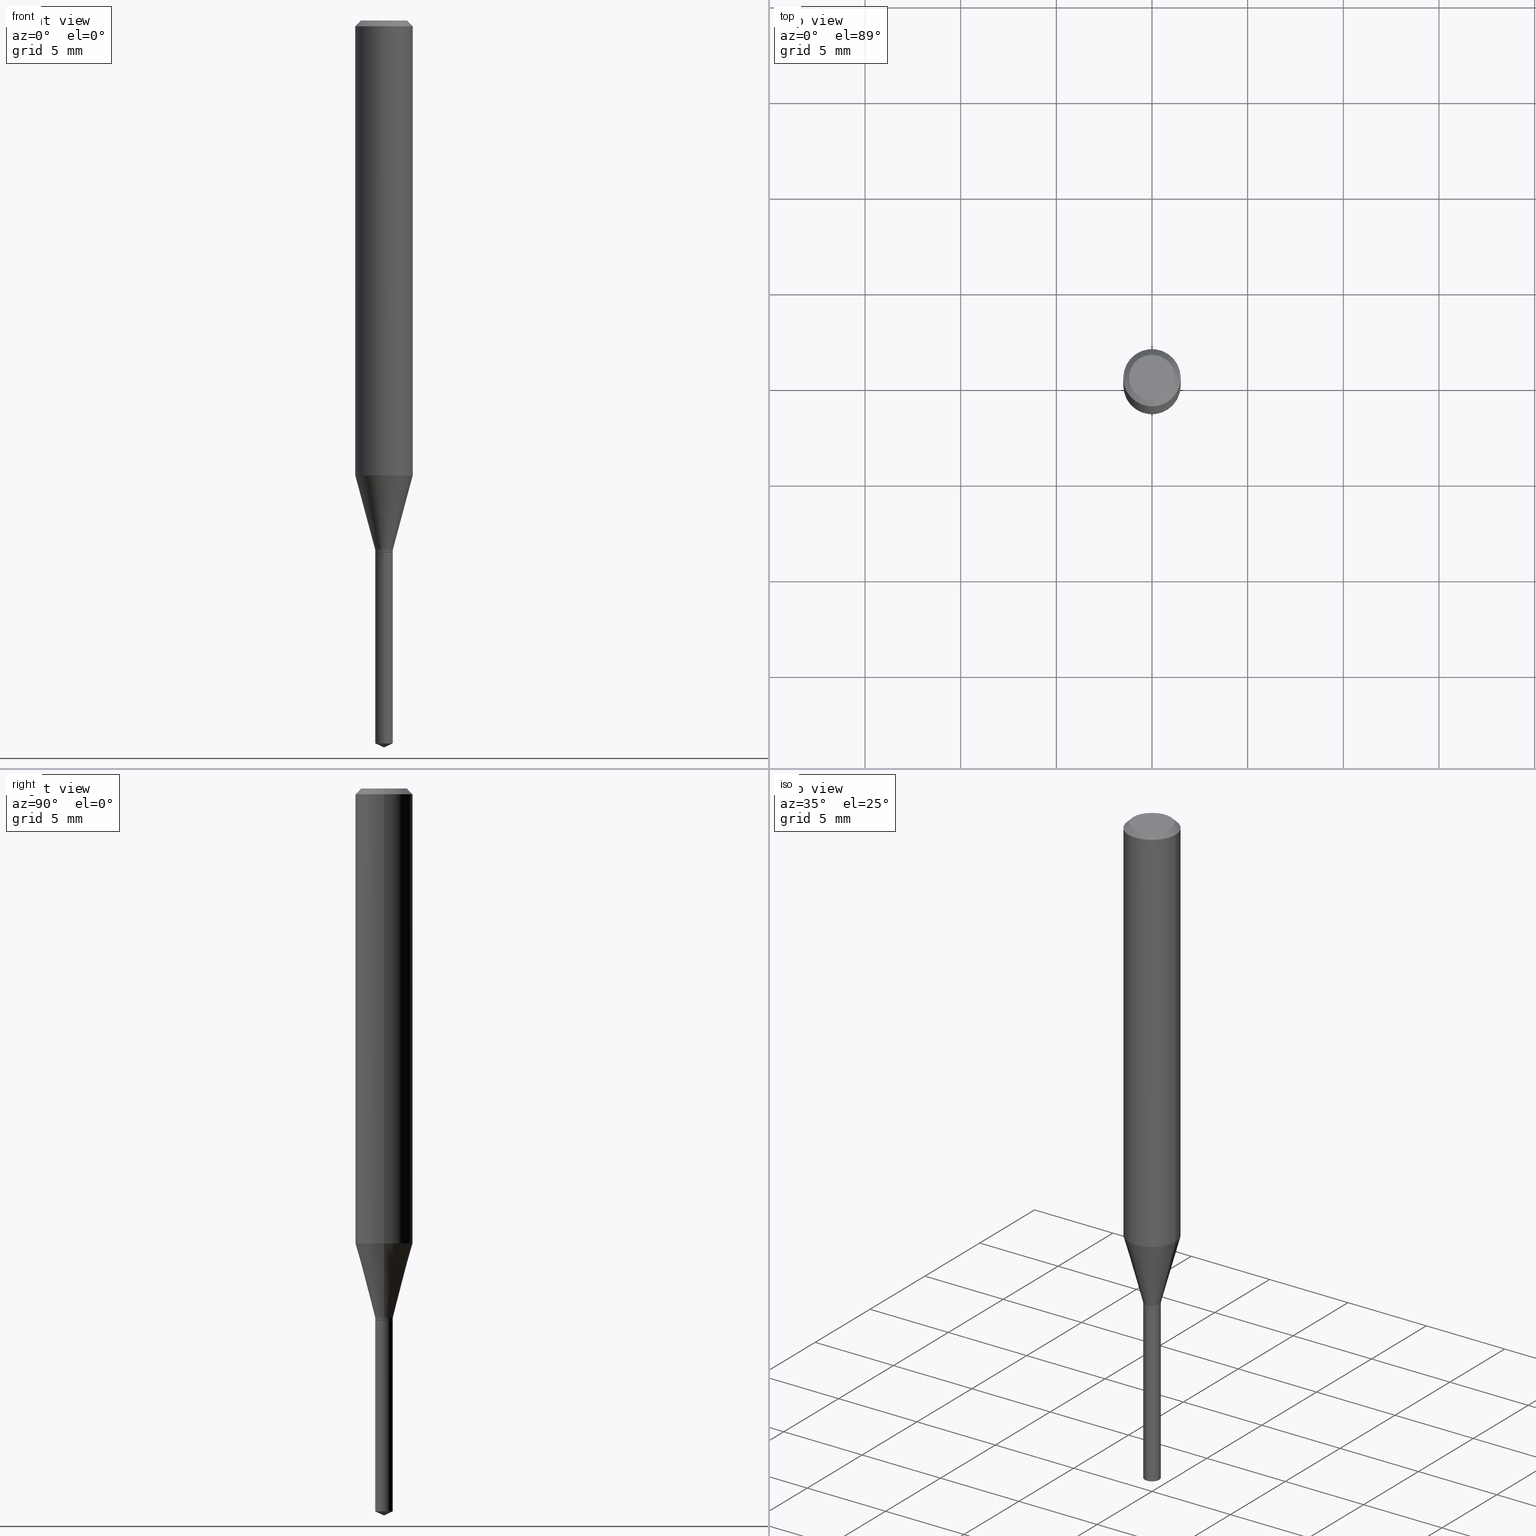
[diagram: canonical four-view strip — front | top / right | iso, engineering-drawing reading convention]
A machine part, canonical four-view strip (front | top / right | iso — engineering-drawing reading convention). The complete STEP part file that produces these views, byte-faithful:
ISO-10303-21;
HEADER;
FILE_DESCRIPTION (( 'STEP AP203' ),
    '1' );
FILE_NAME ('08320.STEP',
    '2024-04-24T14:18:38',
    ( '' ),
    ( '' ),
    'SwSTEP 2.0',
    'SolidWorks 2023',
    '' );
FILE_SCHEMA (( 'CONFIG_CONTROL_DESIGN' ));
ENDSEC;

DATA;
#1 =( CONVERSION_BASED_UNIT ( 'INCH', #327 ) LENGTH_UNIT ( ) NAMED_UNIT ( #437 ) );
#2 = PERSON_AND_ORGANIZATION_ROLE ( 'design_supplier' ) ;
#3 = CIRCLE ( 'NONE', #331, 0.01810000000000000150 ) ;
#4 = LOCAL_TIME ( 10, 18, 38.00000000000000000, #186 ) ;
#5 = DIRECTION ( 'NONE',  ( 1.000000000000000000, -6.982962677686266711E-15, 0.000000000000000000 ) ) ;
#6 = MECHANICAL_CONTEXT ( 'NONE', #310, 'mechanical' ) ;
#7 = ORIENTED_EDGE ( 'NONE', *, *, #389, .F. ) ;
#8 = DIRECTION ( 'NONE',  ( -6.982962677686267499E-15, -1.000000000000000000, 3.520397390770428626E-15 ) ) ;
#9 = CONICAL_SURFACE ( 'NONE', #321, 0.01810000000000000150, 0.2617993877991498519 ) ;
#10 = ORIENTED_EDGE ( 'NONE', *, *, #30, .T. ) ;
#11 = PERSON_AND_ORGANIZATION ( #353, #68 ) ;
#12 = VERTEX_POINT ( 'NONE', #414 ) ;
#13 = VERTEX_POINT ( 'NONE', #89 ) ;
#14 = DIRECTION ( 'NONE',  ( 1.000000000000000000, -6.982962677686266711E-15, 4.876176775795935793E-29 ) ) ;
#15 = VERTEX_POINT ( 'NONE', #80 ) ;
#16 = DIRECTION ( 'NONE',  ( -2.445468806185136597E-29, 3.491481338843145583E-15, 1.000000000000000000 ) ) ;
#17 = CIRCLE ( 'NONE', #126, 0.05904999999999999832 ) ;
#18 = VECTOR ( 'NONE', #138, 39.37007874015748854 ) ;
#19 = ORIENTED_EDGE ( 'NONE', *, *, #432, .T. ) ;
#20 = CARTESIAN_POINT ( 'NONE',  ( 2.676565608369631794E-29, -3.821426325363822773E-15, -1.094499999999999806 ) ) ;
#21 = ORIENTED_EDGE ( 'NONE', *, *, #409, .F. ) ;
#22 = CARTESIAN_POINT ( 'NONE',  ( 0.01760000000000000106, -3.944326468491100569E-15, -1.094499999999999806 ) ) ;
#23 = CARTESIAN_POINT ( 'NONE',  ( -0.01810000000000000150, -3.673964090961491577E-15, -1.089099999999999957 ) ) ;
#24 = APPROVAL ( #47, 'UNSPECIFIED' ) ;
#25 = AXIS2_PLACEMENT_3D ( 'NONE', #408, #451, #259 ) ;
#26 = DIRECTION ( 'NONE',  ( -2.445468806185136597E-29, 3.491481338843145583E-15, 1.000000000000000000 ) ) ;
#27 = CARTESIAN_POINT ( 'NONE',  ( 0.01810000000000000150, -3.928963950600190549E-15, -1.089099999999999957 ) ) ;
#28 = DIRECTION ( 'NONE',  ( -2.445460715294871217E-29, 3.491492925458510144E-15, 1.000000000000000000 ) ) ;
#29 = ORIENTED_EDGE ( 'NONE', *, *, #231, .T. ) ;
#30 = EDGE_CURVE ( 'NONE', #378, #148, #229, .T. ) ;
#31 = PERSON_AND_ORGANIZATION ( #353, #68 ) ;
#32 = AXIS2_PLACEMENT_3D ( 'NONE', #224, #82, #227 ) ;
#33 = CONICAL_SURFACE ( 'NONE', #300, 0.01810000000000000150, 0.2617993877991498519 ) ;
#34 = PERSON_AND_ORGANIZATION_ROLE ( 'creator' ) ;
#35 = CC_DESIGN_PERSON_AND_ORGANIZATION_ASSIGNMENT ( #407, #2, ( #465 ) ) ;
#36 = CARTESIAN_POINT ( 'NONE',  ( 2.888098660104663328E-31, -4.123439461173779030E-17, -0.01181000000000006871 ) ) ;
#37 = DIRECTION ( 'NONE',  ( 0.000000000000000000, 0.000000000000000000, 1.000000000000000000 ) ) ;
#38 = APPROVAL ( #443, 'UNSPECIFIED' ) ;
#39 = EDGE_LOOP ( 'NONE', ( #423, #490, #208, #128 ) ) ;
#40 = DIRECTION ( 'NONE',  ( -0.7071067811865218156, 7.493145998870261075E-15, 0.7071067811865732189 ) ) ;
#41 = AXIS2_PLACEMENT_3D ( 'NONE', #444, #119, #187 ) ;
#42 = COORDINATED_UNIVERSAL_TIME_OFFSET ( 5, 0, .BEHIND. ) ;
#43 = VECTOR ( 'NONE', #484, 39.37007874015748143 ) ;
#44 = VERTEX_POINT ( 'NONE', #366 ) ;
#45 = DIRECTION ( 'NONE',  ( -2.445468806185136877E-29, 3.491481338843145188E-15, 1.000000000000000000 ) ) ;
#46 = DIRECTION ( 'NONE',  ( -6.982962677686265922E-15, -1.000000000000000000, 0.000000000000000000 ) ) ;
#47 = APPROVAL_STATUS ( 'not_yet_approved' ) ;
#48 = EDGE_CURVE ( 'NONE', #164, #163, #17, .T. ) ;
#49 = ORIENTED_EDGE ( 'NONE', *, *, #51, .T. ) ;
#50 = FACE_OUTER_BOUND ( 'NONE', #64, .T. ) ;
#51 = EDGE_CURVE ( 'NONE', #285, #304, #106, .T. ) ;
#52 = ORIENTED_EDGE ( 'NONE', *, *, #284, .T. ) ;
#53 = DIRECTION ( 'NONE',  ( -2.445468806185136597E-29, 3.491481338843145583E-15, 1.000000000000000000 ) ) ;
#54 = DIRECTION ( 'NONE',  ( 1.000000000000000000, -6.982962677686262766E-15, 0.000000000000000000 ) ) ;
#55 = DIRECTION ( 'NONE',  ( -2.445468806185136597E-29, 3.491481338843145583E-15, 1.000000000000000000 ) ) ;
#56 = CONICAL_SURFACE ( 'NONE', #427, 0.01760000000000000106, 0.7853981633974119747 ) ;
#57 = DIRECTION ( 'NONE',  ( -6.982962677686265922E-15, -1.000000000000000000, 0.000000000000000000 ) ) ;
#58 = EDGE_CURVE ( 'NONE', #442, #240, #86, .T. ) ;
#59 = CARTESIAN_POINT ( 'NONE',  ( 0.000000000000000000, 0.000000000000000000, 0.000000000000000000 ) ) ;
#60 = CARTESIAN_POINT ( 'NONE',  ( -9.261931828548885815E-28, 1.322367415117763772E-13, 37.87397874015748300 ) ) ;
#61 = ORIENTED_EDGE ( 'NONE', *, *, #51, .F. ) ;
#62 = LINE ( 'NONE', #404, #258 ) ;
#63 = EDGE_CURVE ( 'NONE', #163, #164, #156, .T. ) ;
#64 = EDGE_LOOP ( 'NONE', ( #19, #201, #343, #167 ) ) ;
#65 = CARTESIAN_POINT ( 'NONE',  ( 2.676565608369631794E-29, -3.821426325363822773E-15, -1.094499999999999806 ) ) ;
#66 = VERTEX_POINT ( 'NONE', #322 ) ;
#67 = AXIS2_PLACEMENT_3D ( 'NONE', #388, #105, #385 ) ;
#68 = ORGANIZATION ( 'UNSPECIFIED', 'UNSPECIFIED', '' ) ;
#69 = DIRECTION ( 'NONE',  ( -6.982962677686265922E-15, -1.000000000000000000, 0.000000000000000000 ) ) ;
#70 = DIRECTION ( 'NONE',  ( -2.445460715294871217E-29, 3.491492925458510144E-15, 1.000000000000000000 ) ) ;
#71 = EDGE_LOOP ( 'NONE', ( #309, #347, #351 ) ) ;
#72 = ADVANCED_FACE ( 'NONE', ( #76 ), #77, .T. ) ;
#73 = CALENDAR_DATE ( 2024, 24, 4 ) ;
#74 = CC_DESIGN_PERSON_AND_ORGANIZATION_ASSIGNMENT ( #439, #183, ( #346 ) ) ;
#75 = EDGE_LOOP ( 'NONE', ( #270, #287 ) ) ;
#76 = FACE_OUTER_BOUND ( 'NONE', #71, .T. ) ;
#77 = CONICAL_SURFACE ( 'NONE', #41, 84.42940631927494621, 1.134464013796318671 ) ;
#78 = CIRCLE ( 'NONE', #127, 0.05905000000000011628 ) ;
#79 = ADVANCED_FACE ( 'NONE', ( #440 ), #326, .F. ) ;
#80 = CARTESIAN_POINT ( 'NONE',  ( 0.01810000000000000150, -3.928963950600190549E-15, -1.089099999999999957 ) ) ;
#81 = ORIENTED_EDGE ( 'NONE', *, *, #312, .F. ) ;
#82 = DIRECTION ( 'NONE',  ( -2.445468806185136597E-29, 3.491481338843145583E-15, 1.000000000000000000 ) ) ;
#83 = APPROVAL ( #161, 'UNSPECIFIED' ) ;
#84 = LINE ( 'NONE', #151, #108 ) ;
#85 = APPROVAL_DATE_TIME ( #417, #38 ) ;
#86 = CIRCLE ( 'NONE', #476, 0.01760000000000000106 ) ;
#87 = CIRCLE ( 'NONE', #435, 0.01810000000000000150 ) ;
#88 = CC_DESIGN_PERSON_AND_ORGANIZATION_ASSIGNMENT ( #246, #377, ( #111 ) ) ;
#89 = CARTESIAN_POINT ( 'NONE',  ( -1.263916244660946470E-16, -0.01810000000000382483, -1.094499999999999806 ) ) ;
#90 = ADVANCED_BREP_SHAPE_REPRESENTATION ( '08320', ( #296, #461, #394 ), #488 ) ;
#91 = DIRECTION ( 'NONE',  ( -2.445460715294871217E-29, 3.491492925458510144E-15, 1.000000000000000000 ) ) ;
#92 = PERSON_AND_ORGANIZATION ( #353, #68 ) ;
#93 = CARTESIAN_POINT ( 'NONE',  ( 0.04724000000000000421, -3.852183633974369345E-16, -3.380025165621689721E-19 ) ) ;
#94 = DIRECTION ( 'NONE',  ( -2.445460715294871217E-29, 3.491492925458510144E-15, 1.000000000000000000 ) ) ;
#95 = CALENDAR_DATE ( 2024, 24, 4 ) ;
#96 = ADVANCED_FACE ( 'NONE', ( #261 ), #367, .T. ) ;
#97 = CIRCLE ( 'NONE', #315, 0.01810000000000000150 ) ;
#98 = AXIS2_PLACEMENT_3D ( 'NONE', #120, #223, #185 ) ;
#99 = ORIENTED_EDGE ( 'NONE', *, *, #248, .T. ) ;
#100 = DIRECTION ( 'NONE',  ( 2.438088387897960049E-29, -3.491481338843145188E-15, -1.000000000000000000 ) ) ;
#101 = DIRECTION ( 'NONE',  ( -6.982962677686265922E-15, -1.000000000000000000, 0.000000000000000000 ) ) ;
#102 = DIRECTION ( 'NONE',  ( -2.445468806185136597E-29, 3.491481338843145583E-15, 1.000000000000000000 ) ) ;
#103 = DATE_AND_TIME ( #198, #436 ) ;
#104 = DIRECTION ( 'NONE',  ( -2.445468806185136597E-29, 3.491481338843145583E-15, 1.000000000000000000 ) ) ;
#105 = DIRECTION ( 'NONE',  ( -2.445460715294871217E-29, 3.491492925458510144E-15, 1.000000000000000000 ) ) ;
#106 = CIRCLE ( 'NONE', #288, 0.01810000000000000150 ) ;
#107 = DIRECTION ( 'NONE',  ( 1.000000000000000000, -6.982962677686260400E-15, 0.000000000000000000 ) ) ;
#108 = VECTOR ( 'NONE', #379, 39.37007874015748143 ) ;
#109 = EDGE_CURVE ( 'NONE', #12, #13, #463, .T. ) ;
#110 = CARTESIAN_POINT ( 'NONE',  ( -0.01810000000000000150, 1.286082351725781443E-16, -8.903272513361380370E-31 ) ) ;
#111 = PRODUCT ( '08320', '08320', '', ( #6 ) ) ;
#112 = AXIS2_PLACEMENT_3D ( 'NONE', #65, #474, #358 ) ;
#113 = CARTESIAN_POINT ( 'NONE',  ( 3.658653776152657051E-29, -5.223622565778476142E-15, -1.496099999999999985 ) ) ;
#114 = DESIGN_CONTEXT ( 'detailed design', #342, 'design' ) ;
#115 = ORIENTED_EDGE ( 'NONE', *, *, #124, .F. ) ;
#116 = COORDINATED_UNIVERSAL_TIME_OFFSET ( 5, 0, .BEHIND. ) ;
#117 = CARTESIAN_POINT ( 'NONE',  ( 3.658653776152655930E-29, -5.223622565778476142E-15, -1.496099999999999985 ) ) ;
#118 = APPROVAL_ROLE ( '' ) ;
#119 = DIRECTION ( 'NONE',  ( -2.445460715294871217E-29, 3.491492925458510144E-15, 1.000000000000000000 ) ) ;
#120 = CARTESIAN_POINT ( 'NONE',  ( 0.000000000000000000, 0.000000000000000000, 0.000000000000000000 ) ) ;
#121 = EDGE_CURVE ( 'NONE', #434, #265, #411, .T. ) ;
#122 = DIRECTION ( 'NONE',  ( 1.000000000000000000, -6.982962677686265922E-15, 4.876176775795935793E-29 ) ) ;
#123 = PERSON_AND_ORGANIZATION ( #353, #68 ) ;
#124 = EDGE_CURVE ( 'NONE', #304, #15, #251, .T. ) ;
#125 = CARTESIAN_POINT ( 'NONE',  ( 2.676565608369631794E-29, -3.821426325363822773E-15, -1.094499999999999806 ) ) ;
#126 = AXIS2_PLACEMENT_3D ( 'NONE', #36, #330, #5 ) ;
#127 = AXIS2_PLACEMENT_3D ( 'NONE', #317, #178, #481 ) ;
#128 = ORIENTED_EDGE ( 'NONE', *, *, #219, .F. ) ;
#129 = COORDINATED_UNIVERSAL_TIME_OFFSET ( 5, 0, .BEHIND. ) ;
#130 = ORIENTED_EDGE ( 'NONE', *, *, #109, .F. ) ;
#131 = APPROVAL_PERSON_ORGANIZATION ( #31, #38, #118 ) ;
#132 = EDGE_LOOP ( 'NONE', ( #276, #457, #181, #438 ) ) ;
#133 = FACE_OUTER_BOUND ( 'NONE', #200, .T. ) ;
#134 = ADVANCED_FACE ( 'NONE', ( #135 ), #390, .F. ) ;
#135 = FACE_OUTER_BOUND ( 'NONE', #361, .T. ) ;
#136 = ORIENTED_EDGE ( 'NONE', *, *, #109, .T. ) ;
#137 = DIRECTION ( 'NONE',  ( -1.000000000000000000, 6.982962677686266711E-15, 0.000000000000000000 ) ) ;
#138 = DIRECTION ( 'NONE',  ( -0.2588190451025211281, 5.211531920934547886E-15, 0.9659258262890679791 ) ) ;
#139 = EDGE_CURVE ( 'NONE', #66, #265, #144, .T. ) ;
#140 = PLANE ( 'NONE',  #355 ) ;
#141 = VECTOR ( 'NONE', #357, 39.37007874015748854 ) ;
#142 = ORIENTED_EDGE ( 'NONE', *, *, #176, .F. ) ;
#143 = CARTESIAN_POINT ( 'NONE',  ( 1.286082351726144812E-16, 0.01809999999999480080, -1.487659831387394549 ) ) ;
#144 = LINE ( 'NONE', #23, #18 ) ;
#145 = ORIENTED_EDGE ( 'NONE', *, *, #157, .T. ) ;
#146 = CONICAL_SURFACE ( 'NONE', #262, 0.05904999999999999832, 0.7853981633974452814 ) ;
#147 = EDGE_CURVE ( 'NONE', #12, #217, #364, .T. ) ;
#148 = VERTEX_POINT ( 'NONE', #243 ) ;
#149 = DIRECTION ( 'NONE',  ( 1.000000000000000000, -6.982962677686260400E-15, 0.000000000000000000 ) ) ;
#150 = CARTESIAN_POINT ( 'NONE',  ( 0.000000000000000000, 0.000000000000000000, 0.000000000000000000 ) ) ;
#151 = CARTESIAN_POINT ( 'NONE',  ( 0.05905000000000006077, -4.123439461173744764E-16, 2.879382386107503023E-30 ) ) ;
#152 = VECTOR ( 'NONE', #40, 39.37007874015748143 ) ;
#153 = CIRCLE ( 'NONE', #253, 0.01810000000000000150 ) ;
#154 = CARTESIAN_POINT ( 'NONE',  ( 2.675342873966538993E-29, -3.819680584694400481E-15, -1.093999999999999861 ) ) ;
#155 = ADVANCED_FACE ( 'NONE', ( #279 ), #9, .T. ) ;
#156 = CIRCLE ( 'NONE', #25, 0.05904999999999999832 ) ;
#157 = EDGE_CURVE ( 'NONE', #434, #163, #84, .T. ) ;
#158 = ORIENTED_EDGE ( 'NONE', *, *, #269, .F. ) ;
#159 = CARTESIAN_POINT ( 'NONE',  ( -0.05905000000000011628, -2.849402544195350882E-15, -0.9362725194300541842 ) ) ;
#160 = DIRECTION ( 'NONE',  ( 1.000000000000000000, -6.982962677686262766E-15, 0.000000000000000000 ) ) ;
#161 = APPROVAL_STATUS ( 'not_yet_approved' ) ;
#162 = ORIENTED_EDGE ( 'NONE', *, *, #248, .F. ) ;
#163 = VERTEX_POINT ( 'NONE', #422 ) ;
#164 = VERTEX_POINT ( 'NONE', #344 ) ;
#165 = AXIS2_PLACEMENT_3D ( 'NONE', #376, #372, #203 ) ;
#166 = CARTESIAN_POINT ( 'NONE',  ( 3.658671642415649744E-29, -5.223597202677443246E-15, -1.496099999999999985 ) ) ;
#167 = ORIENTED_EDGE ( 'NONE', *, *, #206, .F. ) ;
#168 = FACE_OUTER_BOUND ( 'NONE', #244, .T. ) ;
#169 = CYLINDRICAL_SURFACE ( 'NONE', #412, 0.01810000000000000150 ) ;
#170 = DIRECTION ( 'NONE',  ( 1.000000000000000000, -6.982962677686266711E-15, 0.000000000000000000 ) ) ;
#171 = CARTESIAN_POINT ( 'NONE',  ( -0.01760000000000000106, -3.696370803870045503E-15, -1.094499999999999806 ) ) ;
#172 = CYLINDRICAL_SURFACE ( 'NONE', #67, 0.01810000000000000150 ) ;
#173 = FACE_OUTER_BOUND ( 'NONE', #400, .T. ) ;
#174 = AXIS2_PLACEMENT_3D ( 'NONE', #395, #70, #424 ) ;
#175 = EDGE_LOOP ( 'NONE', ( #162, #49, #196, #7 ) ) ;
#176 = EDGE_CURVE ( 'NONE', #466, #217, #249, .T. ) ;
#177 = CARTESIAN_POINT ( 'NONE',  ( 2.676565608369631794E-29, -3.821426325363822773E-15, -1.094499999999999806 ) ) ;
#178 = DIRECTION ( 'NONE',  ( -2.445468806185136597E-29, 3.491481338843145583E-15, 1.000000000000000000 ) ) ;
#179 = DIRECTION ( 'NONE',  ( 0.7071067811865453523, -7.319954787623248157E-15, -0.7071067811865496822 ) ) ;
#180 = CC_DESIGN_DATE_AND_TIME_ASSIGNMENT ( #222, #362, ( #346 ) ) ;
#181 = ORIENTED_EDGE ( 'NONE', *, *, #63, .F. ) ;
#182 = ORIENTED_EDGE ( 'NONE', *, *, #292, .F. ) ;
#183 = PERSON_AND_ORGANIZATION_ROLE ( 'classification_officer' ) ;
#184 = AXIS2_PLACEMENT_3D ( 'NONE', #59, #102, #382 ) ;
#185 = DIRECTION ( 'NONE',  ( 1.000000000000000000, -6.982962677686266711E-15, 4.876176775795935793E-29 ) ) ;
#186 = COORDINATED_UNIVERSAL_TIME_OFFSET ( 5, 0, .BEHIND. ) ;
#187 = DIRECTION ( 'NONE',  ( -6.982962677686267499E-15, -1.000000000000000000, 3.520397390770428626E-15 ) ) ;
#188 = DIRECTION ( 'NONE',  ( -2.438088387897960049E-29, 3.491481338843145188E-15, 1.000000000000000000 ) ) ;
#189 = CIRCLE ( 'NONE', #464, 0.01810000000000000150 ) ;
#190 = ADVANCED_FACE ( 'NONE', ( #133 ), #56, .T. ) ;
#191 = CC_DESIGN_APPROVAL ( #38, ( #346 ) ) ;
#192 = DIRECTION ( 'NONE',  ( 1.000000000000000000, -6.982962677686262766E-15, 0.000000000000000000 ) ) ;
#193 = DIRECTION ( 'NONE',  ( 1.000000000000000000, 0.000000000000000000, 0.000000000000000000 ) ) ;
#194 = EDGE_CURVE ( 'NONE', #240, #442, #477, .T. ) ;
#195 = VECTOR ( 'NONE', #469, 39.37007874015748854 ) ;
#196 = ORIENTED_EDGE ( 'NONE', *, *, #124, .T. ) ;
#197 = FACE_OUTER_BOUND ( 'NONE', #371, .T. ) ;
#198 = CALENDAR_DATE ( 2024, 24, 4 ) ;
#199 = ADVANCED_FACE ( 'NONE', ( #168 ), #393, .T. ) ;
#200 = EDGE_LOOP ( 'NONE', ( #359, #318, #81, #418 ) ) ;
#201 = ORIENTED_EDGE ( 'NONE', *, *, #139, .T. ) ;
#202 = DIRECTION ( 'NONE',  ( 1.000000000000000000, -6.982962677686266711E-15, 4.876185090822587894E-29 ) ) ;
#203 = DIRECTION ( 'NONE',  ( 1.000000000000000000, -6.982962677686266711E-15, 4.876176775795935793E-29 ) ) ;
#204 = APPROVAL_ROLE ( '' ) ;
#205 = ORIENTED_EDGE ( 'NONE', *, *, #284, .F. ) ;
#206 = EDGE_CURVE ( 'NONE', #15, #434, #278, .T. ) ;
#207 = DIRECTION ( 'NONE',  ( -2.445468806185136597E-29, 3.491481338843145583E-15, 1.000000000000000000 ) ) ;
#208 = ORIENTED_EDGE ( 'NONE', *, *, #206, .T. ) ;
#209 = AXIS2_PLACEMENT_3D ( 'NONE', #482, #470, #170 ) ;
#210 = DIRECTION ( 'NONE',  ( 1.000000000000000000, -6.982962677686262766E-15, 0.000000000000000000 ) ) ;
#211 = DIRECTION ( 'NONE',  ( 1.000000000000000000, -6.982962677686262766E-15, 0.000000000000000000 ) ) ;
#212 = CARTESIAN_POINT ( 'NONE',  ( -0.01760000000000000106, -3.693721576695933513E-15, -1.094499999999999806 ) ) ;
#213 = CARTESIAN_POINT ( 'NONE',  ( 2.676565608369631794E-29, -3.821426325363822773E-15, -1.094499999999999806 ) ) ;
#214 = CIRCLE ( 'NONE', #236, 0.01810000000000000150 ) ;
#215 = APPROVAL_PERSON_ORGANIZATION ( #11, #83, #303 ) ;
#216 = DIRECTION ( 'NONE',  ( -2.445468806185136877E-29, 3.491481338843145188E-15, 1.000000000000000000 ) ) ;
#217 = VERTEX_POINT ( 'NONE', #143 ) ;
#218 = SECURITY_CLASSIFICATION_LEVEL ( 'unclassified' ) ;
#219 = EDGE_CURVE ( 'NONE', #265, #434, #78, .T. ) ;
#220 = DIRECTION ( 'NONE',  ( -2.445468806185136597E-29, 3.491481338843145583E-15, 1.000000000000000000 ) ) ;
#221 = EDGE_LOOP ( 'NONE', ( #458, #397, #136, #338 ) ) ;
#222 = DATE_AND_TIME ( #73, #247 ) ;
#223 = DIRECTION ( 'NONE',  ( -2.445468806185136597E-29, 3.491481338843145583E-15, 1.000000000000000000 ) ) ;
#224 = CARTESIAN_POINT ( 'NONE',  ( 8.265746106709734507E-48, -1.180129479067563789E-33, -3.380025165646692144E-19 ) ) ;
#225 = ORIENTED_EDGE ( 'NONE', *, *, #63, .T. ) ;
#226 = APPROVAL_DATE_TIME ( #450, #83 ) ;
#227 = DIRECTION ( 'NONE',  ( 1.000000000000000000, -6.982962677686266711E-15, 4.876185090822587894E-29 ) ) ;
#228 = ADVANCED_FACE ( 'NONE', ( #305 ), #140, .F. ) ;
#229 = CIRCLE ( 'NONE', #32, 0.04724000000000000421 ) ;
#230 = VECTOR ( 'NONE', #360, 39.37007874015748143 ) ;
#231 = EDGE_CURVE ( 'NONE', #148, #378, #335, .T. ) ;
#232 = ADVANCED_FACE ( 'NONE', ( #271 ), #238, .T. ) ;
#233 = FACE_OUTER_BOUND ( 'NONE', #345, .T. ) ;
#234 = PERSON_AND_ORGANIZATION ( #353, #68 ) ;
#235 = FACE_OUTER_BOUND ( 'NONE', #221, .T. ) ;
#236 = AXIS2_PLACEMENT_3D ( 'NONE', #462, #419, #160 ) ;
#237 = ORIENTED_EDGE ( 'NONE', *, *, #194, .T. ) ;
#238 = CYLINDRICAL_SURFACE ( 'NONE', #184, 0.05905000000000006077 ) ;
#239 = CARTESIAN_POINT ( 'NONE',  ( 2.663360076816232005E-29, -3.802572326134069746E-15, -1.089099999999999957 ) ) ;
#240 = VERTEX_POINT ( 'NONE', #212 ) ;
#241 = EDGE_CURVE ( 'NONE', #442, #304, #352, .T. ) ;
#242 = DIRECTION ( 'NONE',  ( 1.000000000000000000, -6.982962677686260400E-15, 0.000000000000000000 ) ) ;
#243 = CARTESIAN_POINT ( 'NONE',  ( -0.04724000000000000421, 3.504923541997677355E-16, -3.380025165670481712E-19 ) ) ;
#244 = EDGE_LOOP ( 'NONE', ( #471, #381, #52, #489 ) ) ;
#245 = CONICAL_SURFACE ( 'NONE', #369, 84.42940631927494621, 1.134464013796318671 ) ;
#246 = PERSON_AND_ORGANIZATION ( #353, #68 ) ;
#247 = LOCAL_TIME ( 10, 18, 38.00000000000000000, #116 ) ;
#248 = EDGE_CURVE ( 'NONE', #285, #66, #429, .T. ) ;
#249 = LINE ( 'NONE', #166, #195 ) ;
#250 = CC_DESIGN_PERSON_AND_ORGANIZATION_ASSIGNMENT ( #234, #420, ( #264 ) ) ;
#251 = LINE ( 'NONE', #274, #485 ) ;
#252 = ORIENTED_EDGE ( 'NONE', *, *, #312, .T. ) ;
#253 = AXIS2_PLACEMENT_3D ( 'NONE', #421, #339, #101 ) ;
#254 = CARTESIAN_POINT ( 'NONE',  ( 2.663360076816232005E-29, -3.802572326134069746E-15, -1.089099999999999957 ) ) ;
#255 = ORIENTED_EDGE ( 'NONE', *, *, #432, .F. ) ;
#256 = CARTESIAN_POINT ( 'NONE',  ( -0.05904999999999999832, 3.711095515056362547E-16, -0.01181000000000006871 ) ) ;
#257 = ORIENTED_EDGE ( 'NONE', *, *, #431, .T. ) ;
#258 = VECTOR ( 'NONE', #179, 39.37007874015748143 ) ;
#259 = DIRECTION ( 'NONE',  ( 1.000000000000000000, -6.982962677686266711E-15, 0.000000000000000000 ) ) ;
#260 = LOCAL_TIME ( 10, 18, 38.00000000000000000, #129 ) ;
#261 = FACE_OUTER_BOUND ( 'NONE', #175, .T. ) ;
#262 = AXIS2_PLACEMENT_3D ( 'NONE', #406, #486, #441 ) ;
#263 = CC_DESIGN_APPROVAL ( #24, ( #264 ) ) ;
#264 = PRODUCT_DEFINITION ( 'UNKNOWN', '', #465, #114 ) ;
#265 = VERTEX_POINT ( 'NONE', #159 ) ;
#266 = ORIENTED_EDGE ( 'NONE', *, *, #280, .T. ) ;
#267 = CALENDAR_DATE ( 2024, 24, 4 ) ;
#268 = ORIENTED_EDGE ( 'NONE', *, *, #409, .T. ) ;
#269 = EDGE_CURVE ( 'NONE', #265, #164, #302, .T. ) ;
#270 = ORIENTED_EDGE ( 'NONE', *, *, #58, .F. ) ;
#271 = FACE_OUTER_BOUND ( 'NONE', #132, .T. ) ;
#272 = DATE_AND_TIME ( #267, #428 ) ;
#273 = CARTESIAN_POINT ( 'NONE',  ( 2.676565608369631794E-29, -3.821426325363822773E-15, -1.094499999999999806 ) ) ;
#274 = CARTESIAN_POINT ( 'NONE',  ( 0.01810000000000000150, -1.263916244661214436E-16, 8.825879964190644724E-31 ) ) ;
#275 = DIRECTION ( 'NONE',  ( 1.000000000000000000, -6.982962677686262766E-15, 0.000000000000000000 ) ) ;
#276 = ORIENTED_EDGE ( 'NONE', *, *, #121, .T. ) ;
#277 = CARTESIAN_POINT ( 'NONE',  ( 4.132873053354867254E-48, -5.900647395337818946E-34, -1.690012582823346072E-19 ) ) ;
#278 = LINE ( 'NONE', #27, #141 ) ;
#279 = FACE_OUTER_BOUND ( 'NONE', #39, .T. ) ;
#280 = EDGE_CURVE ( 'NONE', #378, #163, #62, .T. ) ;
#281 = DIRECTION ( 'NONE',  ( 0.7071067811865218156, -2.468850131081987665E-15, 0.7071067811865732189 ) ) ;
#282 = AXIS2_PLACEMENT_3D ( 'NONE', #311, #473, #137 ) ;
#283 = CC_DESIGN_SECURITY_CLASSIFICATION ( #346, ( #465 ) ) ;
#284 = EDGE_CURVE ( 'NONE', #148, #164, #286, .T. ) ;
#285 = VERTEX_POINT ( 'NONE', #290 ) ;
#286 = LINE ( 'NONE', #256, #43 ) ;
#287 = ORIENTED_EDGE ( 'NONE', *, *, #194, .F. ) ;
#288 = AXIS2_PLACEMENT_3D ( 'NONE', #154, #297, #192 ) ;
#289 = VECTOR ( 'NONE', #387, 39.37007874015748143 ) ;
#290 = CARTESIAN_POINT ( 'NONE',  ( -0.01810000000000000150, -3.682518220241656550E-15, -1.093999999999999861 ) ) ;
#291 = ORIENTED_EDGE ( 'NONE', *, *, #219, .T. ) ;
#292 = EDGE_CURVE ( 'NONE', #240, #285, #447, .T. ) ;
#293 = AXIS2_PLACEMENT_3D ( 'NONE', #332, #340, #14 ) ;
#294 = VECTOR ( 'NONE', #430, 39.37007874015748143 ) ;
#295 = CARTESIAN_POINT ( 'NONE',  ( 2.676565608369631794E-29, -3.821426325363822773E-15, -1.094499999999999806 ) ) ;
#296 = MANIFOLD_SOLID_BREP ( 'Body-Move/Copy2[1]', #368 ) ;
#297 = DIRECTION ( 'NONE',  ( -2.445468806185136597E-29, 3.491481338843145583E-15, 1.000000000000000000 ) ) ;
#298 = DIRECTION ( 'NONE',  ( -2.445468806185136597E-29, 3.491481338843145583E-15, 1.000000000000000000 ) ) ;
#299 = EDGE_CURVE ( 'NONE', #44, #13, #153, .T. ) ;
#300 = AXIS2_PLACEMENT_3D ( 'NONE', #239, #16, #54 ) ;
#301 = APPROVAL_PERSON_ORGANIZATION ( #92, #24, #204 ) ;
#302 = LINE ( 'NONE', #459, #454 ) ;
#303 = APPROVAL_ROLE ( '' ) ;
#304 = VERTEX_POINT ( 'NONE', #306 ) ;
#305 = FACE_OUTER_BOUND ( 'NONE', #483, .T. ) ;
#306 = CARTESIAN_POINT ( 'NONE',  ( 0.01810000000000000150, -3.946072209160522072E-15, -1.093999999999999861 ) ) ;
#307 = AXIS2_PLACEMENT_3D ( 'NONE', #20, #384, #349 ) ;
#308 = CARTESIAN_POINT ( 'NONE',  ( 3.638022530859460971E-29, -5.194141095227371238E-15, -1.487659831387394549 ) ) ;
#309 = ORIENTED_EDGE ( 'NONE', *, *, #431, .F. ) ;
#310 = APPLICATION_CONTEXT ( 'configuration controlled 3d designs of mechanical parts and assemblies' ) ;
#311 = CARTESIAN_POINT ( 'NONE',  ( 2.888098660104663328E-31, -4.123439461173779030E-17, -0.01181000000000006871 ) ) ;
#312 = EDGE_CURVE ( 'NONE', #304, #285, #214, .T. ) ;
#313 = CARTESIAN_POINT ( 'NONE',  ( 0.05905000000000011628, -3.681321975779065690E-15, -0.9362725194300541842 ) ) ;
#314 = AXIS2_PLACEMENT_3D ( 'NONE', #365, #188, #122 ) ;
#315 = AXIS2_PLACEMENT_3D ( 'NONE', #308, #467, #46 ) ;
#316 = EDGE_LOOP ( 'NONE', ( #472, #266, #225, #205 ) ) ;
#317 = CARTESIAN_POINT ( 'NONE',  ( 2.289625240354564916E-29, -3.268978029661690375E-15, -0.9362725194300541842 ) ) ;
#318 = ORIENTED_EDGE ( 'NONE', *, *, #292, .T. ) ;
#319 = EDGE_CURVE ( 'NONE', #217, #44, #383, .T. ) ;
#320 = ORIENTED_EDGE ( 'NONE', *, *, #299, .T. ) ;
#321 = AXIS2_PLACEMENT_3D ( 'NONE', #350, #55, #210 ) ;
#322 = CARTESIAN_POINT ( 'NONE',  ( -0.01810000000000000150, -3.682518220241656550E-15, -1.089099999999999957 ) ) ;
#323 = CYLINDRICAL_SURFACE ( 'NONE', #98, 0.05905000000000006077 ) ;
#324 = ADVANCED_FACE ( 'NONE', ( #197 ), #245, .T. ) ;
#325 = ORIENTED_EDGE ( 'NONE', *, *, #363, .F. ) ;
#326 = PLANE ( 'NONE',  #314 ) ;
#327 = LENGTH_MEASURE_WITH_UNIT ( LENGTH_MEASURE( 0.02539999999999999897 ), #401 );
#328 = ADVANCED_FACE ( 'NONE', ( #233 ), #348, .T. ) ;
#329 =( NAMED_UNIT ( * ) SI_UNIT ( $, .STERADIAN. ) SOLID_ANGLE_UNIT ( ) );
#330 = DIRECTION ( 'NONE',  ( -2.445468806185136597E-29, 3.491481338843145583E-15, 1.000000000000000000 ) ) ;
#331 = AXIS2_PLACEMENT_3D ( 'NONE', #177, #28, #57 ) ;
#332 = CARTESIAN_POINT ( 'NONE',  ( 0.000000000000000000, 0.000000000000000000, 0.000000000000000000 ) ) ;
#333 = CC_DESIGN_PERSON_AND_ORGANIZATION_ASSIGNMENT ( #123, #34, ( #465 ) ) ;
#334 = UNCERTAINTY_MEASURE_WITH_UNIT (LENGTH_MEASURE( 1.000000000000000082E-05 ), #1, 'distance_accuracy_value', 'NONE');
#335 = CIRCLE ( 'NONE', #403, 0.04724000000000000421 ) ;
#336 = ORIENTED_EDGE ( 'NONE', *, *, #241, .T. ) ;
#337 = DATE_TIME_ROLE ( 'creation_date' ) ;
#338 = ORIENTED_EDGE ( 'NONE', *, *, #299, .F. ) ;
#339 = DIRECTION ( 'NONE',  ( -2.445460715294871217E-29, 3.491492925458510144E-15, 1.000000000000000000 ) ) ;
#340 = DIRECTION ( 'NONE',  ( -2.445468806185136597E-29, 3.491481338843145583E-15, 1.000000000000000000 ) ) ;
#341 = CC_DESIGN_DATE_AND_TIME_ASSIGNMENT ( #103, #337, ( #264 ) ) ;
#342 = APPLICATION_CONTEXT ( 'configuration controlled 3d designs of mechanical parts and assemblies' ) ;
#343 = ORIENTED_EDGE ( 'NONE', *, *, #121, .F. ) ;
#344 = CARTESIAN_POINT ( 'NONE',  ( -0.05904999999999999832, -1.235530726670373770E-15, -0.01181000000000006871 ) ) ;
#345 = EDGE_LOOP ( 'NONE', ( #252, #99, #255, #115 ) ) ;
#346 = SECURITY_CLASSIFICATION ( '', '', #218 ) ;
#347 = ORIENTED_EDGE ( 'NONE', *, *, #176, .T. ) ;
#348 = CYLINDRICAL_SURFACE ( 'NONE', #165, 0.01810000000000000150 ) ;
#349 = DIRECTION ( 'NONE',  ( 1.000000000000000000, -6.982962677686260400E-15, 0.000000000000000000 ) ) ;
#350 = CARTESIAN_POINT ( 'NONE',  ( 2.663360076816232005E-29, -3.802572326134069746E-15, -1.089099999999999957 ) ) ;
#351 = ORIENTED_EDGE ( 'NONE', *, *, #147, .F. ) ;
#352 = LINE ( 'NONE', #22, #449 ) ;
#353 = PERSON ( 'UNSPECIFIED', 'UNSPECIFIED', 'UNSPECIFIED', ('UNSPECIFIED'), ('UNSPECIFIED'), ('UNSPECIFIED') ) ;
#354 = ADVANCED_FACE ( 'NONE', ( #50 ), #33, .T. ) ;
#355 = AXIS2_PLACEMENT_3D ( 'NONE', #277, #100, #426 ) ;
#356 = AXIS2_PLACEMENT_3D ( 'NONE', #125, #207, #107 ) ;
#357 = DIRECTION ( 'NONE',  ( 0.2588190451025211281, 1.565188264969622954E-15, 0.9659258262890679791 ) ) ;
#358 = DIRECTION ( 'NONE',  ( 6.982962677686265922E-15, 1.000000000000000000, -3.491492925458510144E-15 ) ) ;
#359 = ORIENTED_EDGE ( 'NONE', *, *, #58, .T. ) ;
#360 = DIRECTION ( 'NONE',  ( -6.328713451373382789E-15, -0.9063077870366502697, 0.4226182617406985531 ) ) ;
#361 = EDGE_LOOP ( 'NONE', ( #268, #320 ) ) ;
#362 = DATE_TIME_ROLE ( 'classification_date' ) ;
#363 = EDGE_CURVE ( 'NONE', #217, #12, #97, .T. ) ;
#364 = CIRCLE ( 'NONE', #174, 0.01810000000000000150 ) ;
#365 = CARTESIAN_POINT ( 'NONE',  ( 2.676565608369631794E-29, -3.821426325363822773E-15, -1.094499999999999806 ) ) ;
#366 = CARTESIAN_POINT ( 'NONE',  ( 1.286082351726145552E-16, 0.01809999999999617817, -1.094499999999999806 ) ) ;
#367 = CYLINDRICAL_SURFACE ( 'NONE', #293, 0.01810000000000000150 ) ;
#368 = CLOSED_SHELL ( 'NONE', ( #396, #72, #324, #380, #134 ) ) ;
#369 = AXIS2_PLACEMENT_3D ( 'NONE', #60, #94, #8 ) ;
#370 = ADVANCED_FACE ( 'NONE', ( #375 ), #487, .T. ) ;
#371 = EDGE_LOOP ( 'NONE', ( #142, #257, #325 ) ) ;
#372 = DIRECTION ( 'NONE',  ( -2.445468806185136597E-29, 3.491481338843145583E-15, 1.000000000000000000 ) ) ;
#373 = VECTOR ( 'NONE', #91, 39.37007874015748143 ) ;
#374 = EDGE_LOOP ( 'NONE', ( #158, #291, #145, #405 ) ) ;
#375 = FACE_OUTER_BOUND ( 'NONE', #399, .T. ) ;
#376 = CARTESIAN_POINT ( 'NONE',  ( 0.000000000000000000, 0.000000000000000000, 0.000000000000000000 ) ) ;
#377 = PERSON_AND_ORGANIZATION_ROLE ( 'design_owner' ) ;
#378 = VERTEX_POINT ( 'NONE', #93 ) ;
#379 = DIRECTION ( 'NONE',  ( -2.445468806185136877E-29, 3.491481338843145188E-15, 1.000000000000000000 ) ) ;
#380 = ADVANCED_FACE ( 'NONE', ( #235 ), #169, .T. ) ;
#381 = ORIENTED_EDGE ( 'NONE', *, *, #231, .F. ) ;
#382 = DIRECTION ( 'NONE',  ( 1.000000000000000000, -6.982962677686266711E-15, 4.876176775795935793E-29 ) ) ;
#383 = LINE ( 'NONE', #415, #373 ) ;
#384 = DIRECTION ( 'NONE',  ( -2.445468806185136597E-29, 3.491481338843145583E-15, 1.000000000000000000 ) ) ;
#385 = DIRECTION ( 'NONE',  ( -6.982962677686265922E-15, -1.000000000000000000, 0.000000000000000000 ) ) ;
#386 = CARTESIAN_POINT ( 'NONE',  ( 8.265746106709734507E-48, -1.180129479067563789E-33, -3.380025165646692144E-19 ) ) ;
#387 = DIRECTION ( 'NONE',  ( -2.445468806185136877E-29, 3.491481338843145188E-15, 1.000000000000000000 ) ) ;
#388 = CARTESIAN_POINT ( 'NONE',  ( 2.676565608369631794E-29, -3.821426325363822773E-15, -1.094499999999999806 ) ) ;
#389 = EDGE_CURVE ( 'NONE', #66, #15, #87, .T. ) ;
#390 = PLANE ( 'NONE',  #112 ) ;
#391 = ORIENTED_EDGE ( 'NONE', *, *, #147, .T. ) ;
#392 = CARTESIAN_POINT ( 'NONE',  ( 2.663360076816232005E-29, -3.802572326134069746E-15, -1.089099999999999957 ) ) ;
#393 = CONICAL_SURFACE ( 'NONE', #282, 0.05904999999999999832, 0.7853981633974452814 ) ;
#394 = AXIS2_PLACEMENT_3D ( 'NONE', #150, #37, #193 ) ;
#395 = CARTESIAN_POINT ( 'NONE',  ( 3.638022530859460971E-29, -5.194141095227371238E-15, -1.487659831387394549 ) ) ;
#396 = ADVANCED_FACE ( 'NONE', ( #173 ), #172, .T. ) ;
#397 = ORIENTED_EDGE ( 'NONE', *, *, #363, .T. ) ;
#398 = PRODUCT_DEFINITION_SHAPE ( 'NONE', 'NONE',  #264 ) ;
#399 = EDGE_LOOP ( 'NONE', ( #182, #237, #336, #61 ) ) ;
#400 = EDGE_LOOP ( 'NONE', ( #391, #425, #21, #130 ) ) ;
#401 =( LENGTH_UNIT ( ) NAMED_UNIT ( * ) SI_UNIT ( $, .METRE. ) );
#402 =( NAMED_UNIT ( * ) PLANE_ANGLE_UNIT ( ) SI_UNIT ( $, .RADIAN. ) );
#403 = AXIS2_PLACEMENT_3D ( 'NONE', #386, #53, #202 ) ;
#404 = CARTESIAN_POINT ( 'NONE',  ( 0.05904999999999999832, -4.463468013801466955E-16, -0.01181000000000006871 ) ) ;
#405 = ORIENTED_EDGE ( 'NONE', *, *, #48, .F. ) ;
#406 = CARTESIAN_POINT ( 'NONE',  ( 2.888098660104663328E-31, -4.123439461173779030E-17, -0.01181000000000006871 ) ) ;
#407 = PERSON_AND_ORGANIZATION ( #353, #68 ) ;
#408 = CARTESIAN_POINT ( 'NONE',  ( 2.888098660104663328E-31, -4.123439461173779030E-17, -0.01181000000000006871 ) ) ;
#409 = EDGE_CURVE ( 'NONE', #13, #44, #3, .T. ) ;
#410 = APPLICATION_PROTOCOL_DEFINITION ( 'international standard', 'config_control_design', 1994, #310 ) ;
#411 = CIRCLE ( 'NONE', #209, 0.05905000000000011628 ) ;
#412 = AXIS2_PLACEMENT_3D ( 'NONE', #213, #478, #69 ) ;
#413 = CC_DESIGN_APPROVAL ( #83, ( #465 ) ) ;
#414 = CARTESIAN_POINT ( 'NONE',  ( -1.263916244660850081E-16, -0.01810000000000519180, -1.487659831387394549 ) ) ;
#415 = CARTESIAN_POINT ( 'NONE',  ( 1.286082351726048916E-16, 0.01809999999999617817, -1.094499999999999806 ) ) ;
#416 = APPLICATION_PROTOCOL_DEFINITION ( 'international standard', 'config_control_design', 1994, #342 ) ;
#417 = DATE_AND_TIME ( #446, #4 ) ;
#418 = ORIENTED_EDGE ( 'NONE', *, *, #241, .F. ) ;
#419 = DIRECTION ( 'NONE',  ( -2.445468806185136597E-29, 3.491481338843145583E-15, 1.000000000000000000 ) ) ;
#420 = PERSON_AND_ORGANIZATION_ROLE ( 'creator' ) ;
#421 = CARTESIAN_POINT ( 'NONE',  ( 2.676565608369631794E-29, -3.821426325363822773E-15, -1.094499999999999806 ) ) ;
#422 = CARTESIAN_POINT ( 'NONE',  ( 0.05904999999999999832, -4.535783407291118600E-16, -0.01181000000000006871 ) ) ;
#423 = ORIENTED_EDGE ( 'NONE', *, *, #139, .F. ) ;
#424 = DIRECTION ( 'NONE',  ( -6.982962677686265922E-15, -1.000000000000000000, 0.000000000000000000 ) ) ;
#425 = ORIENTED_EDGE ( 'NONE', *, *, #319, .T. ) ;
#426 = DIRECTION ( 'NONE',  ( -1.000000000000000000, 6.982962677686265922E-15, -4.876176775795935793E-29 ) ) ;
#427 = AXIS2_PLACEMENT_3D ( 'NONE', #273, #104, #242 ) ;
#428 = LOCAL_TIME ( 10, 18, 38.00000000000000000, #468 ) ;
#429 = LINE ( 'NONE', #110, #289 ) ;
#430 = DIRECTION ( 'NONE',  ( -2.445460715294871217E-29, 3.491492925458510144E-15, 1.000000000000000000 ) ) ;
#431 = EDGE_CURVE ( 'NONE', #466, #12, #480, .T. ) ;
#432 = EDGE_CURVE ( 'NONE', #15, #66, #189, .T. ) ;
#433 = CLOSED_SHELL ( 'NONE', ( #190, #452, #232, #354, #328, #96, #155, #456, #199, #228, #79, #370 ) ) ;
#434 = VERTEX_POINT ( 'NONE', #313 ) ;
#435 = AXIS2_PLACEMENT_3D ( 'NONE', #392, #26, #275 ) ;
#436 = LOCAL_TIME ( 10, 18, 38.00000000000000000, #42 ) ;
#437 = DIMENSIONAL_EXPONENTS ( 1.000000000000000000, 0.000000000000000000, 0.000000000000000000, 0.000000000000000000, 0.000000000000000000, 0.000000000000000000, 0.000000000000000000 ) ;
#438 = ORIENTED_EDGE ( 'NONE', *, *, #157, .F. ) ;
#439 = PERSON_AND_ORGANIZATION ( #353, #68 ) ;
#440 = FACE_OUTER_BOUND ( 'NONE', #75, .T. ) ;
#441 = DIRECTION ( 'NONE',  ( -1.000000000000000000, 6.982962677686266711E-15, 0.000000000000000000 ) ) ;
#442 = VERTEX_POINT ( 'NONE', #475 ) ;
#443 = APPROVAL_STATUS ( 'not_yet_approved' ) ;
#444 = CARTESIAN_POINT ( 'NONE',  ( -9.261931828548885815E-28, 1.322367415117763772E-13, 37.87397874015748300 ) ) ;
#445 = FACE_OUTER_BOUND ( 'NONE', #316, .T. ) ;
#446 = CALENDAR_DATE ( 2024, 24, 4 ) ;
#447 = LINE ( 'NONE', #171, #152 ) ;
#448 = FACE_OUTER_BOUND ( 'NONE', #374, .T. ) ;
#449 = VECTOR ( 'NONE', #281, 39.37007874015748143 ) ;
#450 = DATE_AND_TIME ( #95, #260 ) ;
#451 = DIRECTION ( 'NONE',  ( -2.445468806185136597E-29, 3.491481338843145583E-15, 1.000000000000000000 ) ) ;
#452 = ADVANCED_FACE ( 'NONE', ( #445 ), #146, .T. ) ;
#453 = CARTESIAN_POINT ( 'NONE',  ( -1.263916244660946470E-16, -0.01810000000000382483, -1.094499999999999806 ) ) ;
#454 = VECTOR ( 'NONE', #45, 39.37007874015748143 ) ;
#455 = SHAPE_DEFINITION_REPRESENTATION ( #398, #90 ) ;
#456 = ADVANCED_FACE ( 'NONE', ( #448 ), #323, .T. ) ;
#457 = ORIENTED_EDGE ( 'NONE', *, *, #269, .T. ) ;
#458 = ORIENTED_EDGE ( 'NONE', *, *, #319, .F. ) ;
#459 = CARTESIAN_POINT ( 'NONE',  ( -0.05905000000000006077, 4.195754854663395916E-16, -2.904631170795524694E-30 ) ) ;
#460 = APPROVAL_DATE_TIME ( #272, #24 ) ;
#461 = MANIFOLD_SOLID_BREP ( 'Body-Move/Copy2[2]', #433 ) ;
#462 = CARTESIAN_POINT ( 'NONE',  ( 2.675342873966538993E-29, -3.819680584694400481E-15, -1.093999999999999861 ) ) ;
#463 = LINE ( 'NONE', #453, #294 ) ;
#464 = AXIS2_PLACEMENT_3D ( 'NONE', #254, #220, #211 ) ;
#465 = PRODUCT_DEFINITION_FORMATION_WITH_SPECIFIED_SOURCE ( 'ANY', '', #111, .NOT_KNOWN. ) ;
#466 = VERTEX_POINT ( 'NONE', #117 ) ;
#467 = DIRECTION ( 'NONE',  ( -2.445460715294871217E-29, 3.491492925458510144E-15, 1.000000000000000000 ) ) ;
#468 = COORDINATED_UNIVERSAL_TIME_OFFSET ( 5, 0, .BEHIND. ) ;
#469 = DIRECTION ( 'NONE',  ( 6.439704144417038242E-15, 0.9063077870366533784, 0.4226182617406922803 ) ) ;
#470 = DIRECTION ( 'NONE',  ( -2.445468806185136597E-29, 3.491481338843145583E-15, 1.000000000000000000 ) ) ;
#471 = ORIENTED_EDGE ( 'NONE', *, *, #280, .F. ) ;
#472 = ORIENTED_EDGE ( 'NONE', *, *, #30, .F. ) ;
#473 = DIRECTION ( 'NONE',  ( 2.445468806185136597E-29, -3.491481338843145583E-15, -1.000000000000000000 ) ) ;
#474 = DIRECTION ( 'NONE',  ( 2.445460715294871217E-29, -3.491492925458510144E-15, -1.000000000000000000 ) ) ;
#475 = CARTESIAN_POINT ( 'NONE',  ( 0.01760000000000000106, -3.944326468491100569E-15, -1.094499999999999806 ) ) ;
#476 = AXIS2_PLACEMENT_3D ( 'NONE', #295, #298, #149 ) ;
#477 = CIRCLE ( 'NONE', #307, 0.01760000000000000106 ) ;
#478 = DIRECTION ( 'NONE',  ( -2.445460715294871217E-29, 3.491492925458510144E-15, 1.000000000000000000 ) ) ;
#479 = PRODUCT_RELATED_PRODUCT_CATEGORY ( 'detail', '', ( #111 ) ) ;
#480 = LINE ( 'NONE', #113, #230 ) ;
#481 = DIRECTION ( 'NONE',  ( 1.000000000000000000, -6.982962677686266711E-15, 0.000000000000000000 ) ) ;
#482 = CARTESIAN_POINT ( 'NONE',  ( 2.289625240354564916E-29, -3.268978029661690375E-15, -0.9362725194300541842 ) ) ;
#483 = EDGE_LOOP ( 'NONE', ( #29, #10 ) ) ;
#484 = DIRECTION ( 'NONE',  ( -0.7071067811865453523, 2.468850131082234184E-15, -0.7071067811865496822 ) ) ;
#485 = VECTOR ( 'NONE', #216, 39.37007874015748143 ) ;
#486 = DIRECTION ( 'NONE',  ( 2.445468806185136597E-29, -3.491481338843145583E-15, -1.000000000000000000 ) ) ;
#487 = CONICAL_SURFACE ( 'NONE', #356, 0.01760000000000000106, 0.7853981633974119747 ) ;
#488 =( GEOMETRIC_REPRESENTATION_CONTEXT ( 3 ) GLOBAL_UNCERTAINTY_ASSIGNED_CONTEXT ( ( #334 ) ) GLOBAL_UNIT_ASSIGNED_CONTEXT ( ( #1, #402, #329 ) ) REPRESENTATION_CONTEXT ( 'NONE', 'WORKASPACE' ) );
#489 = ORIENTED_EDGE ( 'NONE', *, *, #48, .T. ) ;
#490 = ORIENTED_EDGE ( 'NONE', *, *, #389, .T. ) ;
ENDSEC;
END-ISO-10303-21;
